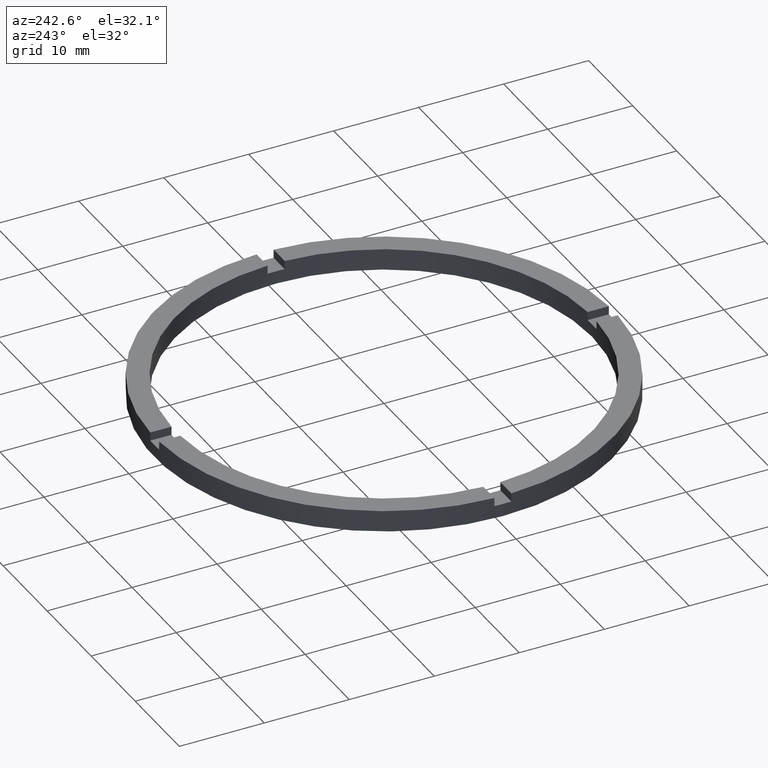
[diagram: clean part render]
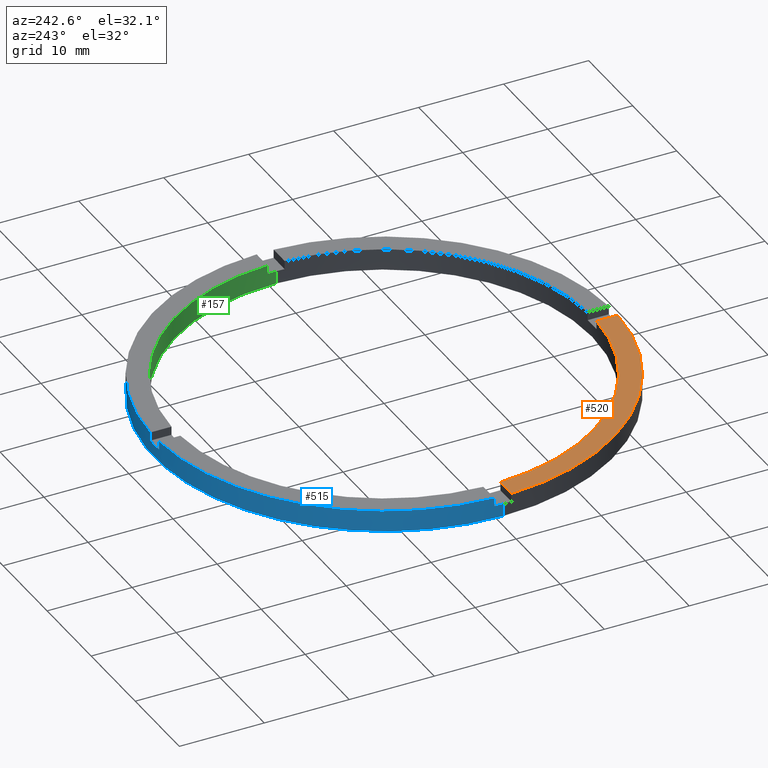
[diagram: same view with three faces highlighted in distinct colors, each labeled with its STEP entity id]
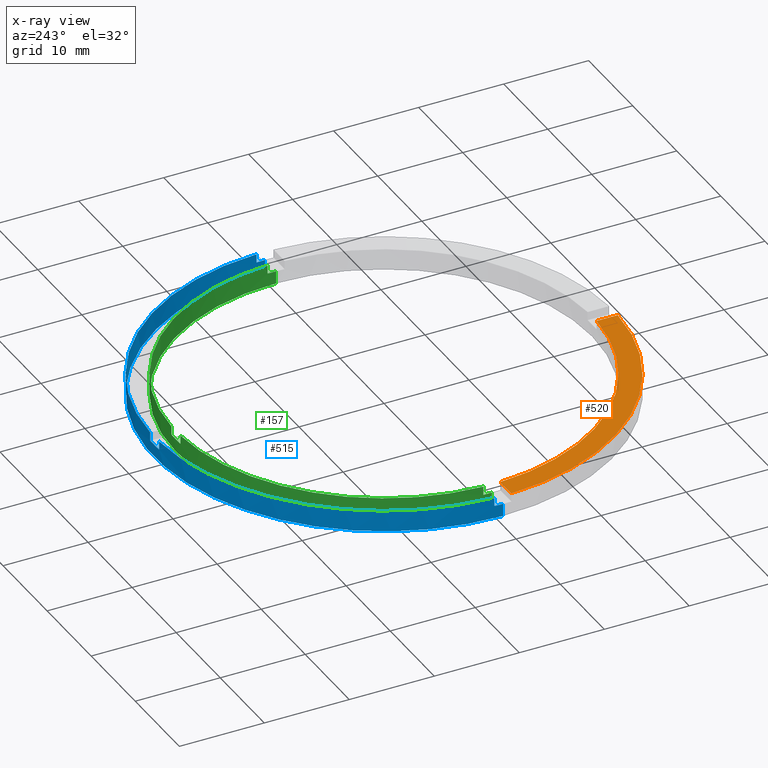
[diagram: x-ray of the same camera — body ghosted, the three highlighted faces saturated]
A machine part, auxiliary view with three faces highlighted in distinct colors.
The next image is the same camera in x-ray (body ghosted, the three faces saturated) — at least one of them is partly hidden behind the body in this view.
Their STEP definitions:

[orange] entity #520 — the highlighted planar face has unit normal (0, 0, 1).
#24 = EDGE_CURVE ( 'NONE', #478, #192, #46, .T. ) ;
#43 = CARTESIAN_POINT ( 'NONE',  ( -24.47958332978729601, -1.000000000000026201, 2.500000000000000000 ) ) ;
#46 = LINE ( 'NONE', #325, #76 ) ;
#62 = VERTEX_POINT ( 'NONE', #403 ) ;
#73 = PLANE ( 'NONE',  #284 ) ;
#76 = VECTOR ( 'NONE', #758, 1000.000000000000000 ) ;
#124 = DIRECTION ( 'NONE',  ( 0.000000000000000000, 0.000000000000000000, 1.000000000000000000 ) ) ;
#129 = LINE ( 'NONE', #491, #392 ) ;
#162 = ORIENTED_EDGE ( 'NONE', *, *, #266, .F. ) ;
#178 = DIRECTION ( 'NONE',  ( 0.000000000000000000, 0.000000000000000000, 1.000000000000000000 ) ) ;
#192 = VERTEX_POINT ( 'NONE', #290 ) ;
#216 = VERTEX_POINT ( 'NONE', #43 ) ;
#225 = DIRECTION ( 'NONE',  ( 1.000000000000000000, 0.000000000000000000, -0.000000000000000000 ) ) ;
#266 = EDGE_CURVE ( 'NONE', #62, #216, #129, .T. ) ;
#272 = AXIS2_PLACEMENT_3D ( 'NONE', #428, #124, #560 ) ;
#284 = AXIS2_PLACEMENT_3D ( 'NONE', #299, #553, #225 ) ;
#290 = CARTESIAN_POINT ( 'NONE',  ( -1.000000000000160094, -26.98147512646407620, 2.500000000000000000 ) ) ;
#299 = CARTESIAN_POINT ( 'NONE',  ( 0.000000000000000000, 0.000000000000000000, 2.500000000000000000 ) ) ;
#325 = CARTESIAN_POINT ( 'NONE',  ( -1.000000000000161426, -17.00000000000018119, 2.500000000000000000 ) ) ;
#327 = CARTESIAN_POINT ( 'NONE',  ( 0.000000000000000000, 0.000000000000000000, 2.500000000000000000 ) ) ;
#372 = CIRCLE ( 'NONE', #429, 24.50000000000000000 ) ;
#392 = VECTOR ( 'NONE', #530, 1000.000000000000000 ) ;
#403 = CARTESIAN_POINT ( 'NONE',  ( -26.98147512646407975, -1.000000000000026645, 2.500000000000000000 ) ) ;
#428 = CARTESIAN_POINT ( 'NONE',  ( 0.000000000000000000, 0.000000000000000000, 2.500000000000000000 ) ) ;
#429 = AXIS2_PLACEMENT_3D ( 'NONE', #327, #178, #712 ) ;
#478 = VERTEX_POINT ( 'NONE', #618 ) ;
#491 = CARTESIAN_POINT ( 'NONE',  ( -17.00000000000018474, -1.000000000000024869, 2.500000000000000000 ) ) ;
#520 = ADVANCED_FACE ( 'NONE', ( #689 ), #73, .T. ) ;
#530 = DIRECTION ( 'NONE',  ( 1.000000000000000000, 1.734723475976807341E-16, -0.000000000000000000 ) ) ;
#553 = DIRECTION ( 'NONE',  ( 0.000000000000000000, 0.000000000000000000, 1.000000000000000000 ) ) ;
#554 = EDGE_CURVE ( 'NONE', #62, #192, #705, .T. ) ;
#560 = DIRECTION ( 'NONE',  ( 1.000000000000000000, 0.000000000000000000, 0.000000000000000000 ) ) ;
#565 = ORIENTED_EDGE ( 'NONE', *, *, #554, .T. ) ;
#618 = CARTESIAN_POINT ( 'NONE',  ( -1.000000000000160316, -24.47958332978728890, 2.500000000000000000 ) ) ;
#689 = FACE_OUTER_BOUND ( 'NONE', #731, .T. ) ;
#705 = CIRCLE ( 'NONE', #272, 27.00000000000000000 ) ;
#712 = DIRECTION ( 'NONE',  ( 1.000000000000000000, 0.000000000000000000, 0.000000000000000000 ) ) ;
#727 = ORIENTED_EDGE ( 'NONE', *, *, #750, .F. ) ;
#731 = EDGE_LOOP ( 'NONE', ( #733, #727, #162, #565 ) ) ;
#733 = ORIENTED_EDGE ( 'NONE', *, *, #24, .F. ) ;
#750 = EDGE_CURVE ( 'NONE', #216, #478, #372, .T. ) ;
#758 = DIRECTION ( 'NONE',  ( 1.301042606982605567E-16, -1.000000000000000000, 0.000000000000000000 ) ) ;

[blue] entity #515 — the highlighted cylindrical surface (partial cylindrical patch) has radius 27 mm, axis along (-0, -0, -1).
#1 = CARTESIAN_POINT ( 'NONE',  ( 27.00000000000000000, 3.306546357697853733E-15, 0.000000000000000000 ) ) ;
#2 = CARTESIAN_POINT ( 'NONE',  ( -26.98147512646408330, 0.9999999999999733546, 2.500000000000000000 ) ) ;
#3 = EDGE_CURVE ( 'NONE', #323, #181, #574, .T. ) ;
#9 = CARTESIAN_POINT ( 'NONE',  ( -27.00000000000000000, 0.000000000000000000, 0.000000000000000000 ) ) ;
#17 = CARTESIAN_POINT ( 'NONE',  ( 0.9999999999999735767, 26.98147512646408330, 2.500000000000000000 ) ) ;
#23 = VERTEX_POINT ( 'NONE', #623 ) ;
#28 = CARTESIAN_POINT ( 'NONE',  ( 0.000000000000000000, 0.000000000000000000, 1.500000000000000000 ) ) ;
#31 = EDGE_CURVE ( 'NONE', #613, #605, #335, .T. ) ;
#33 = EDGE_CURVE ( 'NONE', #310, #81, #68, .T. ) ;
#41 = VECTOR ( 'NONE', #556, 1000.000000000000000 ) ;
#53 = VECTOR ( 'NONE', #123, 1000.000000000000000 ) ;
#65 = AXIS2_PLACEMENT_3D ( 'NONE', #164, #648, #276 ) ;
#67 = ORIENTED_EDGE ( 'NONE', *, *, #111, .F. ) ;
#68 = CIRCLE ( 'NONE', #767, 27.00000000000000000 ) ;
#81 = VERTEX_POINT ( 'NONE', #490 ) ;
#83 = ORIENTED_EDGE ( 'NONE', *, *, #87, .F. ) ;
#87 = EDGE_CURVE ( 'NONE', #323, #23, #337, .T. ) ;
#88 = ORIENTED_EDGE ( 'NONE', *, *, #278, .T. ) ;
#100 = DIRECTION ( 'NONE',  ( 0.000000000000000000, 0.000000000000000000, 1.000000000000000000 ) ) ;
#111 = EDGE_CURVE ( 'NONE', #202, #199, #572, .T. ) ;
#114 = AXIS2_PLACEMENT_3D ( 'NONE', #227, #373, #363 ) ;
#118 = CARTESIAN_POINT ( 'NONE',  ( 26.98147512646408686, 0.9999999999998427924, 1.500000000000000000 ) ) ;
#121 = EDGE_CURVE ( 'NONE', #202, #613, #339, .T. ) ;
#123 = DIRECTION ( 'NONE',  ( -0.000000000000000000, -0.000000000000000000, -1.000000000000000000 ) ) ;
#140 = CARTESIAN_POINT ( 'NONE',  ( 0.000000000000000000, 0.000000000000000000, 2.500000000000000000 ) ) ;
#142 = LINE ( 'NONE', #277, #156 ) ;
#156 = VECTOR ( 'NONE', #347, 1000.000000000000000 ) ;
#160 = AXIS2_PLACEMENT_3D ( 'NONE', #361, #439, #741 ) ;
#164 = CARTESIAN_POINT ( 'NONE',  ( 0.000000000000000000, 0.000000000000000000, 0.000000000000000000 ) ) ;
#181 = VERTEX_POINT ( 'NONE', #210 ) ;
#188 = CIRCLE ( 'NONE', #114, 27.00000000000000000 ) ;
#199 = VERTEX_POINT ( 'NONE', #118 ) ;
#202 = VERTEX_POINT ( 'NONE', #358 ) ;
#210 = CARTESIAN_POINT ( 'NONE',  ( 0.9999999999999735767, 26.98147512646408330, 2.500000000000000000 ) ) ;
#214 = EDGE_CURVE ( 'NONE', #578, #181, #649, .T. ) ;
#227 = CARTESIAN_POINT ( 'NONE',  ( 0.000000000000000000, 0.000000000000000000, 2.500000000000000000 ) ) ;
#235 = AXIS2_PLACEMENT_3D ( 'NONE', #252, #297, #249 ) ;
#249 = DIRECTION ( 'NONE',  ( 1.000000000000000000, 0.000000000000000000, 0.000000000000000000 ) ) ;
#250 = DIRECTION ( 'NONE',  ( 1.000000000000000000, 0.000000000000000000, 0.000000000000000000 ) ) ;
#252 = CARTESIAN_POINT ( 'NONE',  ( 0.000000000000000000, 0.000000000000000000, 2.500000000000000000 ) ) ;
#276 = DIRECTION ( 'NONE',  ( 1.000000000000000000, 0.000000000000000000, 0.000000000000000000 ) ) ;
#277 = CARTESIAN_POINT ( 'NONE',  ( -1.000000000000026423, 26.98147512646407975, 2.500000000000000000 ) ) ;
#278 = EDGE_CURVE ( 'NONE', #444, #23, #142, .T. ) ;
#297 = DIRECTION ( 'NONE',  ( 0.000000000000000000, 0.000000000000000000, 1.000000000000000000 ) ) ;
#310 = VERTEX_POINT ( 'NONE', #493 ) ;
#312 = EDGE_CURVE ( 'NONE', #578, #199, #405, .T. ) ;
#316 = CARTESIAN_POINT ( 'NONE',  ( -26.98147512646408330, 0.9999999999999733546, 2.500000000000000000 ) ) ;
#323 = VERTEX_POINT ( 'NONE', #356 ) ;
#335 = CIRCLE ( 'NONE', #65, 27.00000000000000000 ) ;
#337 = CIRCLE ( 'NONE', #458, 27.00000000000000000 ) ;
#338 = CARTESIAN_POINT ( 'NONE',  ( 0.000000000000000000, 0.000000000000000000, 1.500000000000000000 ) ) ;
#339 = LINE ( 'NONE', #545, #53 ) ;
#347 = DIRECTION ( 'NONE',  ( -0.000000000000000000, -0.000000000000000000, -1.000000000000000000 ) ) ;
#349 = EDGE_CURVE ( 'NONE', #310, #716, #409, .T. ) ;
#356 = CARTESIAN_POINT ( 'NONE',  ( 0.9999999999999735767, 26.98147512646408330, 1.500000000000000000 ) ) ;
#358 = CARTESIAN_POINT ( 'NONE',  ( 27.00000000000000000, 3.306546357697853733E-15, 1.500000000000000000 ) ) ;
#361 = CARTESIAN_POINT ( 'NONE',  ( 0.000000000000000000, 0.000000000000000000, 1.500000000000000000 ) ) ;
#363 = DIRECTION ( 'NONE',  ( 1.000000000000000000, 0.000000000000000000, 0.000000000000000000 ) ) ;
#373 = DIRECTION ( 'NONE',  ( 0.000000000000000000, 0.000000000000000000, 1.000000000000000000 ) ) ;
#376 = VECTOR ( 'NONE', #769, 1000.000000000000000 ) ;
#405 = LINE ( 'NONE', #420, #677 ) ;
#409 = LINE ( 'NONE', #2, #419 ) ;
#410 = DIRECTION ( 'NONE',  ( 1.000000000000000000, 0.000000000000000000, 0.000000000000000000 ) ) ;
#418 = ORIENTED_EDGE ( 'NONE', *, *, #31, .T. ) ;
#419 = VECTOR ( 'NONE', #773, 1000.000000000000000 ) ;
#420 = CARTESIAN_POINT ( 'NONE',  ( 26.98147512646408686, 0.9999999999998427924, 2.500000000000000000 ) ) ;
#438 = CYLINDRICAL_SURFACE ( 'NONE', #619, 27.00000000000000000 ) ;
#439 = DIRECTION ( 'NONE',  ( 0.000000000000000000, 0.000000000000000000, 1.000000000000000000 ) ) ;
#444 = VERTEX_POINT ( 'NONE', #584 ) ;
#458 = AXIS2_PLACEMENT_3D ( 'NONE', #28, #595, #250 ) ;
#469 = DIRECTION ( 'NONE',  ( -1.000000000000000000, 0.000000000000000000, 0.000000000000000000 ) ) ;
#470 = ORIENTED_EDGE ( 'NONE', *, *, #214, .F. ) ;
#471 = ORIENTED_EDGE ( 'NONE', *, *, #33, .F. ) ;
#477 = ORIENTED_EDGE ( 'NONE', *, *, #771, .F. ) ;
#490 = CARTESIAN_POINT ( 'NONE',  ( -27.00000000000000000, 0.000000000000000000, 1.500000000000000000 ) ) ;
#493 = CARTESIAN_POINT ( 'NONE',  ( -26.98147512646408330, 0.9999999999999733546, 1.500000000000000000 ) ) ;
#494 = DIRECTION ( 'NONE',  ( -0.000000000000000000, -0.000000000000000000, -1.000000000000000000 ) ) ;
#497 = ORIENTED_EDGE ( 'NONE', *, *, #513, .F. ) ;
#513 = EDGE_CURVE ( 'NONE', #444, #716, #188, .T. ) ;
#515 = ADVANCED_FACE ( 'NONE', ( #700 ), #438, .T. ) ;
#545 = CARTESIAN_POINT ( 'NONE',  ( 27.00000000000000000, 3.306546357697853733E-15, 2.500000000000000000 ) ) ;
#556 = DIRECTION ( 'NONE',  ( 0.000000000000000000, 0.000000000000000000, 1.000000000000000000 ) ) ;
#572 = CIRCLE ( 'NONE', #160, 27.00000000000000000 ) ;
#574 = LINE ( 'NONE', #17, #41 ) ;
#578 = VERTEX_POINT ( 'NONE', #753 ) ;
#584 = CARTESIAN_POINT ( 'NONE',  ( -1.000000000000026423, 26.98147512646407975, 2.500000000000000000 ) ) ;
#595 = DIRECTION ( 'NONE',  ( 0.000000000000000000, -0.000000000000000000, 1.000000000000000000 ) ) ;
#596 = ORIENTED_EDGE ( 'NONE', *, *, #3, .T. ) ;
#598 = ORIENTED_EDGE ( 'NONE', *, *, #121, .T. ) ;
#605 = VERTEX_POINT ( 'NONE', #9 ) ;
#613 = VERTEX_POINT ( 'NONE', #1 ) ;
#619 = AXIS2_PLACEMENT_3D ( 'NONE', #140, #743, #469 ) ;
#623 = CARTESIAN_POINT ( 'NONE',  ( -1.000000000000026423, 26.98147512646407975, 1.500000000000000000 ) ) ;
#636 = LINE ( 'NONE', #639, #376 ) ;
#639 = CARTESIAN_POINT ( 'NONE',  ( -27.00000000000000000, 0.000000000000000000, 2.500000000000000000 ) ) ;
#648 = DIRECTION ( 'NONE',  ( 0.000000000000000000, 0.000000000000000000, 1.000000000000000000 ) ) ;
#649 = CIRCLE ( 'NONE', #235, 27.00000000000000000 ) ;
#677 = VECTOR ( 'NONE', #494, 1000.000000000000000 ) ;
#691 = EDGE_LOOP ( 'NONE', ( #67, #598, #418, #477, #471, #728, #497, #88, #83, #596, #470, #706 ) ) ;
#700 = FACE_OUTER_BOUND ( 'NONE', #691, .T. ) ;
#706 = ORIENTED_EDGE ( 'NONE', *, *, #312, .T. ) ;
#716 = VERTEX_POINT ( 'NONE', #316 ) ;
#728 = ORIENTED_EDGE ( 'NONE', *, *, #349, .T. ) ;
#741 = DIRECTION ( 'NONE',  ( 1.000000000000000000, 0.000000000000000000, 0.000000000000000000 ) ) ;
#743 = DIRECTION ( 'NONE',  ( -0.000000000000000000, -0.000000000000000000, -1.000000000000000000 ) ) ;
#753 = CARTESIAN_POINT ( 'NONE',  ( 26.98147512646408686, 0.9999999999998427924, 2.500000000000000000 ) ) ;
#767 = AXIS2_PLACEMENT_3D ( 'NONE', #338, #100, #410 ) ;
#769 = DIRECTION ( 'NONE',  ( -0.000000000000000000, -0.000000000000000000, -1.000000000000000000 ) ) ;
#771 = EDGE_CURVE ( 'NONE', #81, #605, #636, .T. ) ;
#773 = DIRECTION ( 'NONE',  ( 0.000000000000000000, 0.000000000000000000, 1.000000000000000000 ) ) ;

[green] entity #157 — the highlighted cylindrical surface (partial cylindrical patch) has radius 24.5 mm, axis along (-0, -0, -1).
#5 = CARTESIAN_POINT ( 'NONE',  ( 0.000000000000000000, 0.000000000000000000, 1.500000000000000000 ) ) ;
#11 = CARTESIAN_POINT ( 'NONE',  ( -24.50000000000000000, 0.000000000000000000, 1.500000000000000000 ) ) ;
#35 = AXIS2_PLACEMENT_3D ( 'NONE', #533, #575, #538 ) ;
#37 = LINE ( 'NONE', #642, #61 ) ;
#50 = CARTESIAN_POINT ( 'NONE',  ( 0.000000000000000000, 0.000000000000000000, 2.500000000000000000 ) ) ;
#51 = CIRCLE ( 'NONE', #256, 24.50000000000000000 ) ;
#56 = AXIS2_PLACEMENT_3D ( 'NONE', #5, #206, #505 ) ;
#61 = VECTOR ( 'NONE', #581, 1000.000000000000000 ) ;
#64 = EDGE_CURVE ( 'NONE', #332, #717, #37, .T. ) ;
#69 = EDGE_CURVE ( 'NONE', #717, #604, #51, .T. ) ;
#78 = DIRECTION ( 'NONE',  ( 0.000000000000000000, 0.000000000000000000, 1.000000000000000000 ) ) ;
#80 = DIRECTION ( 'NONE',  ( -0.000000000000000000, -0.000000000000000000, -1.000000000000000000 ) ) ;
#92 = ORIENTED_EDGE ( 'NONE', *, *, #408, .F. ) ;
#94 = VERTEX_POINT ( 'NONE', #294 ) ;
#115 = DIRECTION ( 'NONE',  ( 0.000000000000000000, 0.000000000000000000, 1.000000000000000000 ) ) ;
#127 = CARTESIAN_POINT ( 'NONE',  ( -1.000000000000026423, 24.47958332978729601, 2.500000000000000000 ) ) ;
#137 = LINE ( 'NONE', #519, #659 ) ;
#143 = DIRECTION ( 'NONE',  ( 0.000000000000000000, 0.000000000000000000, 1.000000000000000000 ) ) ;
#157 = ADVANCED_FACE ( 'NONE', ( #679 ), #683, .F. ) ;
#159 = LINE ( 'NONE', #127, #163 ) ;
#163 = VECTOR ( 'NONE', #218, 1000.000000000000000 ) ;
#169 = VERTEX_POINT ( 'NONE', #504 ) ;
#175 = CARTESIAN_POINT ( 'NONE',  ( 0.000000000000000000, 0.000000000000000000, 0.000000000000000000 ) ) ;
#176 = ORIENTED_EDGE ( 'NONE', *, *, #579, .T. ) ;
#185 = LINE ( 'NONE', #388, #686 ) ;
#200 = VERTEX_POINT ( 'NONE', #781 ) ;
#206 = DIRECTION ( 'NONE',  ( 0.000000000000000000, 0.000000000000000000, 1.000000000000000000 ) ) ;
#207 = ORIENTED_EDGE ( 'NONE', *, *, #548, .T. ) ;
#218 = DIRECTION ( 'NONE',  ( -0.000000000000000000, -0.000000000000000000, -1.000000000000000000 ) ) ;
#229 = AXIS2_PLACEMENT_3D ( 'NONE', #247, #451, #501 ) ;
#244 = EDGE_CURVE ( 'NONE', #200, #722, #137, .T. ) ;
#246 = VERTEX_POINT ( 'NONE', #265 ) ;
#247 = CARTESIAN_POINT ( 'NONE',  ( 0.000000000000000000, 0.000000000000000000, 2.500000000000000000 ) ) ;
#251 = CARTESIAN_POINT ( 'NONE',  ( -24.50000000000000000, 0.000000000000000000, 2.500000000000000000 ) ) ;
#256 = AXIS2_PLACEMENT_3D ( 'NONE', #175, #143, #732 ) ;
#259 = CARTESIAN_POINT ( 'NONE',  ( -1.000000000000026423, 24.47958332978729601, 1.500000000000000000 ) ) ;
#263 = DIRECTION ( 'NONE',  ( 0.000000000000000000, 0.000000000000000000, 1.000000000000000000 ) ) ;
#265 = CARTESIAN_POINT ( 'NONE',  ( -1.000000000000026423, 24.47958332978729601, 2.500000000000000000 ) ) ;
#294 = CARTESIAN_POINT ( 'NONE',  ( 0.9999999999999735767, 24.47958332978729601, 2.500000000000000000 ) ) ;
#317 = EDGE_CURVE ( 'NONE', #482, #531, #667, .T. ) ;
#332 = VERTEX_POINT ( 'NONE', #749 ) ;
#341 = DIRECTION ( 'NONE',  ( 1.000000000000000000, 0.000000000000000000, 0.000000000000000000 ) ) ;
#344 = ORIENTED_EDGE ( 'NONE', *, *, #69, .F. ) ;
#346 = ORIENTED_EDGE ( 'NONE', *, *, #244, .F. ) ;
#371 = LINE ( 'NONE', #524, #637 ) ;
#387 = VECTOR ( 'NONE', #644, 1000.000000000000000 ) ;
#388 = CARTESIAN_POINT ( 'NONE',  ( 0.9999999999999735767, 24.47958332978729601, 2.500000000000000000 ) ) ;
#400 = EDGE_CURVE ( 'NONE', #246, #722, #674, .T. ) ;
#408 = EDGE_CURVE ( 'NONE', #246, #531, #159, .T. ) ;
#411 = EDGE_CURVE ( 'NONE', #601, #604, #422, .T. ) ;
#421 = ORIENTED_EDGE ( 'NONE', *, *, #411, .T. ) ;
#422 = LINE ( 'NONE', #251, #387 ) ;
#436 = CIRCLE ( 'NONE', #229, 24.50000000000000000 ) ;
#447 = CIRCLE ( 'NONE', #56, 24.50000000000000000 ) ;
#451 = DIRECTION ( 'NONE',  ( 0.000000000000000000, 0.000000000000000000, 1.000000000000000000 ) ) ;
#454 = EDGE_LOOP ( 'NONE', ( #592, #207, #692, #176, #680, #600, #92, #614, #346, #699, #421, #344 ) ) ;
#459 = CARTESIAN_POINT ( 'NONE',  ( 0.000000000000000000, 0.000000000000000000, 1.500000000000000000 ) ) ;
#482 = VERTEX_POINT ( 'NONE', #506 ) ;
#501 = DIRECTION ( 'NONE',  ( 1.000000000000000000, 0.000000000000000000, 0.000000000000000000 ) ) ;
#504 = CARTESIAN_POINT ( 'NONE',  ( 24.47958332978729956, 0.9999999999998427924, 2.500000000000000000 ) ) ;
#505 = DIRECTION ( 'NONE',  ( 1.000000000000000000, 0.000000000000000000, 0.000000000000000000 ) ) ;
#506 = CARTESIAN_POINT ( 'NONE',  ( 0.9999999999999735767, 24.47958332978729601, 1.500000000000000000 ) ) ;
#509 = DIRECTION ( 'NONE',  ( 1.000000000000000000, 0.000000000000000000, 0.000000000000000000 ) ) ;
#519 = CARTESIAN_POINT ( 'NONE',  ( -24.47958332978729601, 0.9999999999999737987, 2.500000000000000000 ) ) ;
#522 = CARTESIAN_POINT ( 'NONE',  ( 24.50000000000000000, 3.000384657911015469E-15, 0.000000000000000000 ) ) ;
#524 = CARTESIAN_POINT ( 'NONE',  ( 24.47958332978729956, 0.9999999999998427924, 2.500000000000000000 ) ) ;
#531 = VERTEX_POINT ( 'NONE', #259 ) ;
#533 = CARTESIAN_POINT ( 'NONE',  ( 0.000000000000000000, 0.000000000000000000, 1.500000000000000000 ) ) ;
#538 = DIRECTION ( 'NONE',  ( 1.000000000000000000, 0.000000000000000000, 0.000000000000000000 ) ) ;
#541 = CARTESIAN_POINT ( 'NONE',  ( -24.50000000000000000, 0.000000000000000000, 0.000000000000000000 ) ) ;
#548 = EDGE_CURVE ( 'NONE', #332, #593, #695, .T. ) ;
#562 = CARTESIAN_POINT ( 'NONE',  ( -24.47958332978729601, 0.9999999999999737987, 2.500000000000000000 ) ) ;
#575 = DIRECTION ( 'NONE',  ( 0.000000000000000000, -0.000000000000000000, 1.000000000000000000 ) ) ;
#579 = EDGE_CURVE ( 'NONE', #169, #94, #436, .T. ) ;
#581 = DIRECTION ( 'NONE',  ( -0.000000000000000000, -0.000000000000000000, -1.000000000000000000 ) ) ;
#589 = DIRECTION ( 'NONE',  ( -0.000000000000000000, -0.000000000000000000, -1.000000000000000000 ) ) ;
#592 = ORIENTED_EDGE ( 'NONE', *, *, #64, .F. ) ;
#593 = VERTEX_POINT ( 'NONE', #756 ) ;
#600 = ORIENTED_EDGE ( 'NONE', *, *, #317, .T. ) ;
#601 = VERTEX_POINT ( 'NONE', #11 ) ;
#604 = VERTEX_POINT ( 'NONE', #541 ) ;
#607 = EDGE_CURVE ( 'NONE', #200, #601, #447, .T. ) ;
#608 = CARTESIAN_POINT ( 'NONE',  ( 0.000000000000000000, 0.000000000000000000, 2.500000000000000000 ) ) ;
#614 = ORIENTED_EDGE ( 'NONE', *, *, #400, .T. ) ;
#615 = AXIS2_PLACEMENT_3D ( 'NONE', #608, #589, #655 ) ;
#637 = VECTOR ( 'NONE', #80, 1000.000000000000000 ) ;
#642 = CARTESIAN_POINT ( 'NONE',  ( 24.50000000000000000, 3.000384657911015469E-15, 2.500000000000000000 ) ) ;
#644 = DIRECTION ( 'NONE',  ( -0.000000000000000000, -0.000000000000000000, -1.000000000000000000 ) ) ;
#655 = DIRECTION ( 'NONE',  ( -1.000000000000000000, 0.000000000000000000, 0.000000000000000000 ) ) ;
#659 = VECTOR ( 'NONE', #78, 1000.000000000000000 ) ;
#667 = CIRCLE ( 'NONE', #35, 24.50000000000000000 ) ;
#674 = CIRCLE ( 'NONE', #768, 24.50000000000000000 ) ;
#679 = FACE_OUTER_BOUND ( 'NONE', #454, .T. ) ;
#680 = ORIENTED_EDGE ( 'NONE', *, *, #693, .F. ) ;
#683 = CYLINDRICAL_SURFACE ( 'NONE', #615, 24.50000000000000000 ) ;
#686 = VECTOR ( 'NONE', #263, 1000.000000000000000 ) ;
#692 = ORIENTED_EDGE ( 'NONE', *, *, #778, .F. ) ;
#693 = EDGE_CURVE ( 'NONE', #482, #94, #185, .T. ) ;
#695 = CIRCLE ( 'NONE', #764, 24.50000000000000000 ) ;
#699 = ORIENTED_EDGE ( 'NONE', *, *, #607, .T. ) ;
#717 = VERTEX_POINT ( 'NONE', #522 ) ;
#722 = VERTEX_POINT ( 'NONE', #562 ) ;
#732 = DIRECTION ( 'NONE',  ( 1.000000000000000000, 0.000000000000000000, 0.000000000000000000 ) ) ;
#744 = DIRECTION ( 'NONE',  ( 0.000000000000000000, 0.000000000000000000, 1.000000000000000000 ) ) ;
#749 = CARTESIAN_POINT ( 'NONE',  ( 24.50000000000000000, 3.000384657911015469E-15, 1.500000000000000000 ) ) ;
#756 = CARTESIAN_POINT ( 'NONE',  ( 24.47958332978729956, 0.9999999999998427924, 1.500000000000000000 ) ) ;
#764 = AXIS2_PLACEMENT_3D ( 'NONE', #459, #115, #509 ) ;
#768 = AXIS2_PLACEMENT_3D ( 'NONE', #50, #744, #341 ) ;
#778 = EDGE_CURVE ( 'NONE', #169, #593, #371, .T. ) ;
#781 = CARTESIAN_POINT ( 'NONE',  ( -24.47958332978729601, 0.9999999999999737987, 1.500000000000000000 ) ) ;